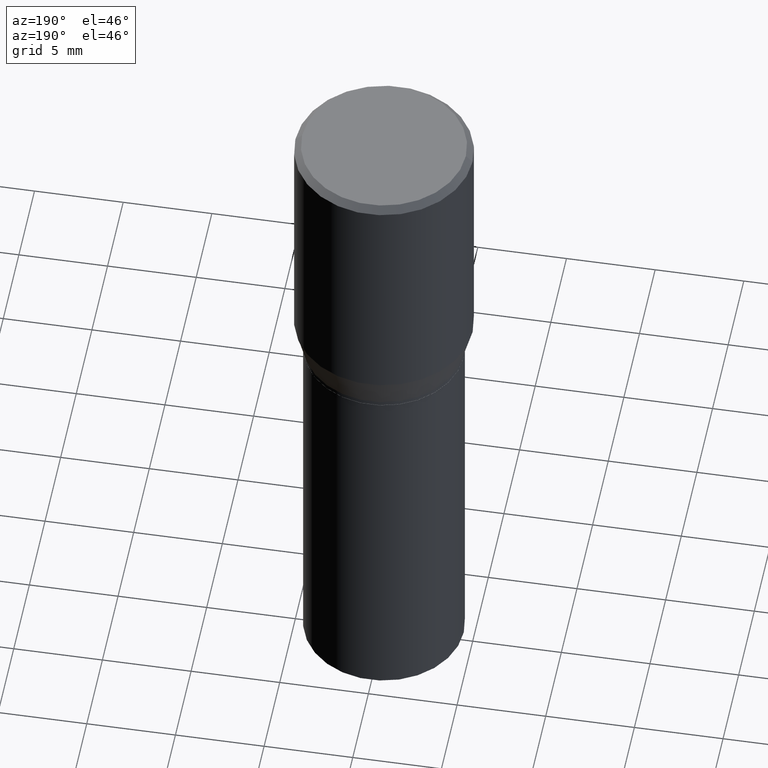
[diagram: clean part render]
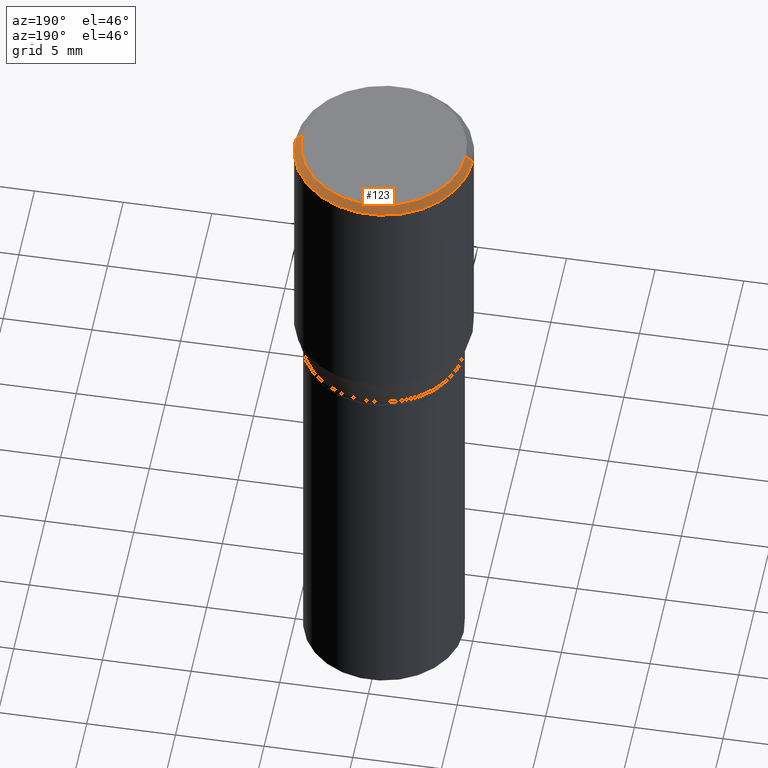
[diagram: same view with one face highlighted and labeled with its STEP entity id]
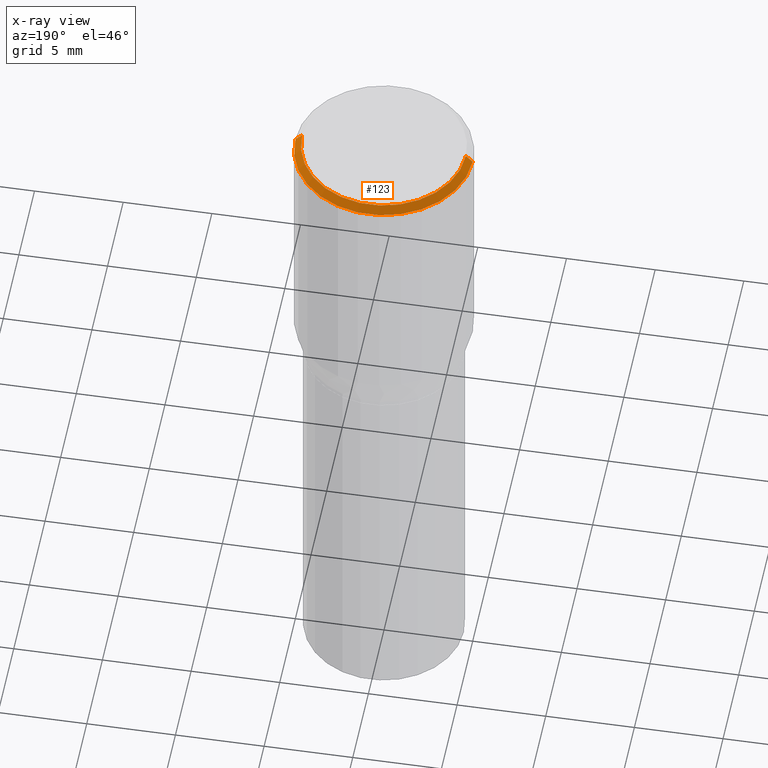
[diagram: x-ray of the same camera — body ghosted, the highlighted face saturated]
A machine part, auxiliary view. The second image highlights one B-rep face of the part: STEP entity #123.
The next image is the same camera in x-ray: the body ghosted, the highlighted face saturated — about 0% of this face is hidden behind the body in this view.
In plain terms, the highlighted conical surface has half-angle 45 deg.
Its self-contained STEP definition (entity closure, byte-faithful):
#32 = LINE ( 'NONE', #180, #52 ) ;
#50 = CARTESIAN_POINT ( 'NONE',  ( 3.668203209277705088E-31, -5.237222008264718399E-17, -0.01499999999999999944 ) ) ;
#52 = VECTOR ( 'NONE', #223, 39.37007874015748143 ) ;
#60 = DIRECTION ( 'NONE',  ( -0.7071067811865479058, 2.468850131082261005E-15, -0.7071067811865471286 ) ) ;
#64 = EDGE_CURVE ( 'NONE', #324, #316, #32, .T. ) ;
#70 = CARTESIAN_POINT ( 'NONE',  ( -0.1818500000000000116, 1.296037872978570989E-15, -6.472253288878428014E-18 ) ) ;
#72 = FACE_OUTER_BOUND ( 'NONE', #435, .T. ) ;
#93 = ORIENTED_EDGE ( 'NONE', *, *, #266, .F. ) ;
#99 = CARTESIAN_POINT ( 'NONE',  ( 0.1818500000000000116, -1.325221405919363357E-15, -6.472253288860382051E-18 ) ) ;
#106 = CIRCLE ( 'NONE', #370, 0.1818500000000000116 ) ;
#113 = VECTOR ( 'NONE', #60, 39.37007874015748143 ) ;
#123 = ADVANCED_FACE ( 'NONE', ( #72 ), #129, .T. ) ;
#129 = CONICAL_SURFACE ( 'NONE', #300, 0.1968500000000000250, 0.7853981633974488341 ) ;
#132 = CARTESIAN_POINT ( 'NONE',  ( -0.1968500000000000250, 4.116989612901891144E-16, -0.01499999999999999944 ) ) ;
#142 = AXIS2_PLACEMENT_3D ( 'NONE', #283, #160, #170 ) ;
#160 = DIRECTION ( 'NONE',  ( -2.445468806185136597E-29, 3.491481338843145583E-15, 1.000000000000000000 ) ) ;
#170 = DIRECTION ( 'NONE',  ( 1.000000000000000000, -6.982962677686265922E-15, 0.000000000000000000 ) ) ;
#180 = CARTESIAN_POINT ( 'NONE',  ( 0.1968500000000000250, -1.402861250943973297E-15, -0.01499999999999999944 ) ) ;
#196 = DIRECTION ( 'NONE',  ( 2.445468806185136597E-29, -3.491481338843145583E-15, -1.000000000000000000 ) ) ;
#217 = CARTESIAN_POINT ( 'NONE',  ( 1.582769352365941312E-46, -2.259775157835388046E-32, -6.472253288869456262E-18 ) ) ;
#223 = DIRECTION ( 'NONE',  ( 0.7071067811865479058, -7.319954787623257623E-15, -0.7071067811865471286 ) ) ;
#230 = ORIENTED_EDGE ( 'NONE', *, *, #333, .F. ) ;
#239 = EDGE_CURVE ( 'NONE', #316, #261, #294, .T. ) ;
#247 = CARTESIAN_POINT ( 'NONE',  ( -0.1968500000000000250, 1.322223983019894529E-15, -0.01499999999999999944 ) ) ;
#261 = VERTEX_POINT ( 'NONE', #132 ) ;
#266 = EDGE_CURVE ( 'NONE', #324, #411, #106, .T. ) ;
#273 = LINE ( 'NONE', #247, #113 ) ;
#280 = DIRECTION ( 'NONE',  ( -2.445468806185136597E-29, 3.491481338843145583E-15, 1.000000000000000000 ) ) ;
#283 = CARTESIAN_POINT ( 'NONE',  ( 3.668203209277705088E-31, -5.237222008264718399E-17, -0.01499999999999999944 ) ) ;
#294 = CIRCLE ( 'NONE', #142, 0.1968500000000000250 ) ;
#300 = AXIS2_PLACEMENT_3D ( 'NONE', #50, #196, #342 ) ;
#316 = VERTEX_POINT ( 'NONE', #384 ) ;
#324 = VERTEX_POINT ( 'NONE', #99 ) ;
#333 = EDGE_CURVE ( 'NONE', #411, #261, #273, .T. ) ;
#339 = ORIENTED_EDGE ( 'NONE', *, *, #239, .T. ) ;
#342 = DIRECTION ( 'NONE',  ( -1.000000000000000000, 6.982962677686265922E-15, 0.000000000000000000 ) ) ;
#370 = AXIS2_PLACEMENT_3D ( 'NONE', #217, #280, #385 ) ;
#372 = ORIENTED_EDGE ( 'NONE', *, *, #64, .T. ) ;
#384 = CARTESIAN_POINT ( 'NONE',  ( 0.1968500000000000250, -1.426968423185188885E-15, -0.01499999999999999944 ) ) ;
#385 = DIRECTION ( 'NONE',  ( 1.000000000000000000, -6.982962677686266711E-15, 4.876336753188190607E-29 ) ) ;
#411 = VERTEX_POINT ( 'NONE', #70 ) ;
#435 = EDGE_LOOP ( 'NONE', ( #93, #372, #339, #230 ) ) ;